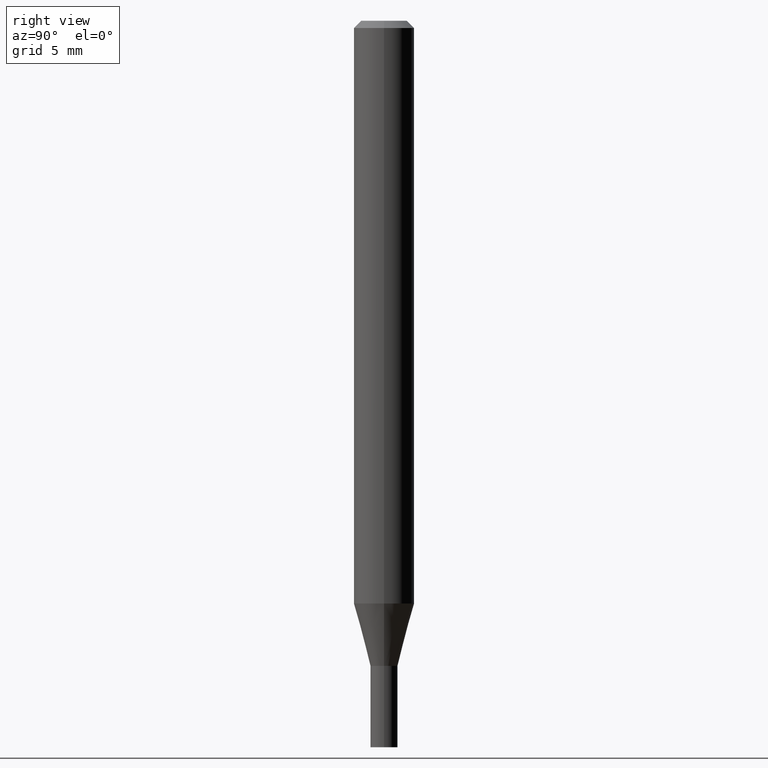
[diagram: clean part render]
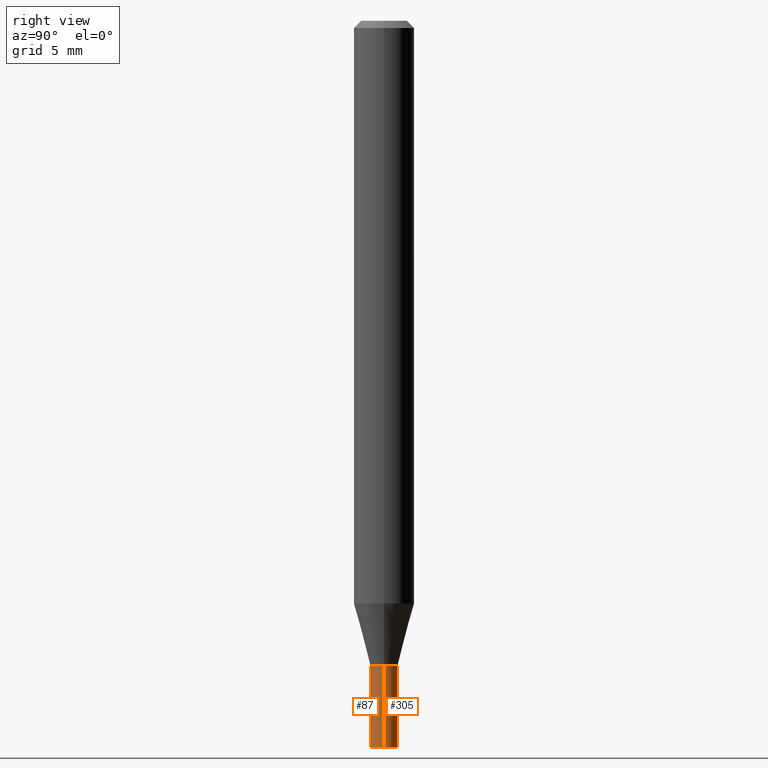
[diagram: same view with one multi-face feature highlighted, each face labeled with its STEP entity id]
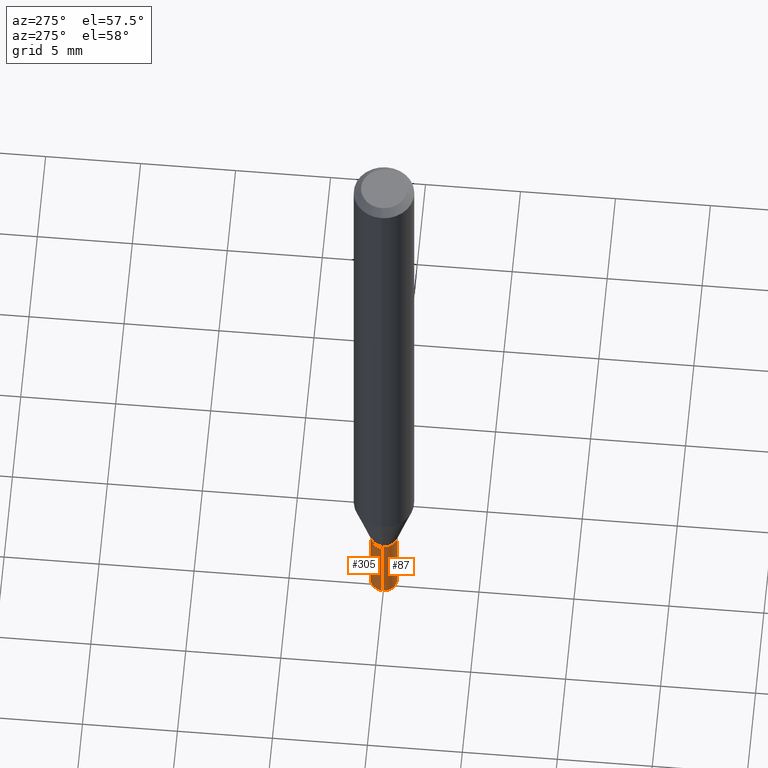
[diagram: same view with one multi-face feature highlighted, each face labeled with its STEP entity id]
A machine part, right view. The highlighted faces form ONE feature: a constant-radius fillet chain: 2 tangent blend faces with common blend radius 0.7112 mm. The faces share edges in the B-rep.
A second angle (auxiliary view) of the same feature is appended — it is thin or edge-on in the first view.
Their STEP definitions:
[1] entity #305 (Cylinder):
#5 = VERTEX_POINT ( 'NONE', #84 ) ;
#21 = VERTEX_POINT ( 'NONE', #48 ) ;
#22 = CARTESIAN_POINT ( 'NONE',  ( 0.02800000000000000405, -4.846176098314285600E-15, -1.332000000000000073 ) ) ;
#37 = CYLINDRICAL_SURFACE ( 'NONE', #445, 0.02800000000000000405 ) ;
#45 = ORIENTED_EDGE ( 'NONE', *, *, #257, .T. ) ;
#47 = ORIENTED_EDGE ( 'NONE', *, *, #99, .F. ) ;
#48 = CARTESIAN_POINT ( 'NONE',  ( 0.02800000000000000405, -5.432744963239933676E-15, -1.500000000000000222 ) ) ;
#61 = DIRECTION ( 'NONE',  ( 1.000000000000000000, -6.982962677686262766E-15, 0.000000000000000000 ) ) ;
#77 = EDGE_LOOP ( 'NONE', ( #45, #232, #221, #47 ) ) ;
#84 = CARTESIAN_POINT ( 'NONE',  ( -0.02800000000000000405, -4.744985609789067093E-15, -1.500000000000000222 ) ) ;
#99 = EDGE_CURVE ( 'NONE', #21, #206, #447, .T. ) ;
#123 = AXIS2_PLACEMENT_3D ( 'NONE', #198, #415, #301 ) ;
#130 = EDGE_CURVE ( 'NONE', #206, #426, #256, .T. ) ;
#166 = CARTESIAN_POINT ( 'NONE',  ( -0.02800000000000000405, 1.989519660128280808E-16, -1.377301825271373721E-30 ) ) ;
#189 = DIRECTION ( 'NONE',  ( 1.000000000000000000, -6.982962677686266711E-15, 4.876176775795935232E-29 ) ) ;
#198 = CARTESIAN_POINT ( 'NONE',  ( 3.257364449838602072E-29, -4.650653143339070101E-15, -1.332000000000000073 ) ) ;
#206 = VERTEX_POINT ( 'NONE', #22 ) ;
#221 = ORIENTED_EDGE ( 'NONE', *, *, #130, .F. ) ;
#232 = ORIENTED_EDGE ( 'NONE', *, *, #337, .T. ) ;
#256 = CIRCLE ( 'NONE', #123, 0.02800000000000000405 ) ;
#257 = EDGE_CURVE ( 'NONE', #21, #5, #439, .T. ) ;
#265 = CARTESIAN_POINT ( 'NONE',  ( 0.02800000000000000405, -1.955229549752154995E-16, 1.365329497222862141E-30 ) ) ;
#279 = AXIS2_PLACEMENT_3D ( 'NONE', #368, #455, #61 ) ;
#282 = CARTESIAN_POINT ( 'NONE',  ( 0.000000000000000000, 0.000000000000000000, 0.000000000000000000 ) ) ;
#301 = DIRECTION ( 'NONE',  ( 1.000000000000000000, -6.982962677686262766E-15, 0.000000000000000000 ) ) ;
#305 = ADVANCED_FACE ( 'NONE', ( #390 ), #37, .T. ) ;
#316 = VECTOR ( 'NONE', #407, 39.37007874015748143 ) ;
#331 = LINE ( 'NONE', #166, #361 ) ;
#337 = EDGE_CURVE ( 'NONE', #5, #426, #331, .T. ) ;
#353 = CARTESIAN_POINT ( 'NONE',  ( -0.02800000000000000405, -4.744985609789067093E-15, -1.332000000000000073 ) ) ;
#361 = VECTOR ( 'NONE', #451, 39.37007874015748143 ) ;
#368 = CARTESIAN_POINT ( 'NONE',  ( 3.668203209277704895E-29, -5.237222008264718177E-15, -1.500000000000000222 ) ) ;
#390 = FACE_OUTER_BOUND ( 'NONE', #77, .T. ) ;
#407 = DIRECTION ( 'NONE',  ( -2.445468806185136877E-29, 3.491481338843145188E-15, 1.000000000000000000 ) ) ;
#415 = DIRECTION ( 'NONE',  ( -2.445468806185136597E-29, 3.491481338843145583E-15, 1.000000000000000000 ) ) ;
#426 = VERTEX_POINT ( 'NONE', #353 ) ;
#439 = CIRCLE ( 'NONE', #279, 0.02800000000000000405 ) ;
#445 = AXIS2_PLACEMENT_3D ( 'NONE', #282, #456, #189 ) ;
#447 = LINE ( 'NONE', #265, #316 ) ;
#451 = DIRECTION ( 'NONE',  ( -2.445468806185136877E-29, 3.491481338843145188E-15, 1.000000000000000000 ) ) ;
#455 = DIRECTION ( 'NONE',  ( -2.445468806185136597E-29, 3.491481338843145583E-15, 1.000000000000000000 ) ) ;
#456 = DIRECTION ( 'NONE',  ( -2.445468806185136597E-29, 3.491481338843145583E-15, 1.000000000000000000 ) ) ;
[2] entity #87 (Cylinder):
#2 = CIRCLE ( 'NONE', #263, 0.02800000000000000405 ) ;
#5 = VERTEX_POINT ( 'NONE', #84 ) ;
#21 = VERTEX_POINT ( 'NONE', #48 ) ;
#22 = CARTESIAN_POINT ( 'NONE',  ( 0.02800000000000000405, -4.846176098314285600E-15, -1.332000000000000073 ) ) ;
#27 = EDGE_CURVE ( 'NONE', #426, #206, #411, .T. ) ;
#31 = CYLINDRICAL_SURFACE ( 'NONE', #71, 0.02800000000000000405 ) ;
#48 = CARTESIAN_POINT ( 'NONE',  ( 0.02800000000000000405, -5.432744963239933676E-15, -1.500000000000000222 ) ) ;
#55 = EDGE_CURVE ( 'NONE', #5, #21, #2, .T. ) ;
#71 = AXIS2_PLACEMENT_3D ( 'NONE', #142, #424, #339 ) ;
#74 = CARTESIAN_POINT ( 'NONE',  ( 3.668203209277704895E-29, -5.237222008264718177E-15, -1.500000000000000222 ) ) ;
#84 = CARTESIAN_POINT ( 'NONE',  ( -0.02800000000000000405, -4.744985609789067093E-15, -1.500000000000000222 ) ) ;
#87 = ADVANCED_FACE ( 'NONE', ( #465 ), #31, .T. ) ;
#99 = EDGE_CURVE ( 'NONE', #21, #206, #447, .T. ) ;
#105 = ORIENTED_EDGE ( 'NONE', *, *, #55, .T. ) ;
#142 = CARTESIAN_POINT ( 'NONE',  ( 0.000000000000000000, 0.000000000000000000, 0.000000000000000000 ) ) ;
#161 = AXIS2_PLACEMENT_3D ( 'NONE', #323, #278, #345 ) ;
#166 = CARTESIAN_POINT ( 'NONE',  ( -0.02800000000000000405, 1.989519660128280808E-16, -1.377301825271373721E-30 ) ) ;
#206 = VERTEX_POINT ( 'NONE', #22 ) ;
#244 = DIRECTION ( 'NONE',  ( -2.445468806185136597E-29, 3.491481338843145583E-15, 1.000000000000000000 ) ) ;
#259 = ORIENTED_EDGE ( 'NONE', *, *, #337, .F. ) ;
#263 = AXIS2_PLACEMENT_3D ( 'NONE', #74, #244, #311 ) ;
#265 = CARTESIAN_POINT ( 'NONE',  ( 0.02800000000000000405, -1.955229549752154995E-16, 1.365329497222862141E-30 ) ) ;
#278 = DIRECTION ( 'NONE',  ( -2.445468806185136597E-29, 3.491481338843145583E-15, 1.000000000000000000 ) ) ;
#298 = ORIENTED_EDGE ( 'NONE', *, *, #27, .F. ) ;
#308 = ORIENTED_EDGE ( 'NONE', *, *, #99, .T. ) ;
#311 = DIRECTION ( 'NONE',  ( 1.000000000000000000, -6.982962677686262766E-15, 0.000000000000000000 ) ) ;
#316 = VECTOR ( 'NONE', #407, 39.37007874015748143 ) ;
#323 = CARTESIAN_POINT ( 'NONE',  ( 3.257364449838602072E-29, -4.650653143339070101E-15, -1.332000000000000073 ) ) ;
#331 = LINE ( 'NONE', #166, #361 ) ;
#337 = EDGE_CURVE ( 'NONE', #5, #426, #331, .T. ) ;
#339 = DIRECTION ( 'NONE',  ( 1.000000000000000000, -6.982962677686266711E-15, 4.876176775795935232E-29 ) ) ;
#345 = DIRECTION ( 'NONE',  ( 1.000000000000000000, -6.982962677686262766E-15, 0.000000000000000000 ) ) ;
#353 = CARTESIAN_POINT ( 'NONE',  ( -0.02800000000000000405, -4.744985609789067093E-15, -1.332000000000000073 ) ) ;
#361 = VECTOR ( 'NONE', #451, 39.37007874015748143 ) ;
#407 = DIRECTION ( 'NONE',  ( -2.445468806185136877E-29, 3.491481338843145188E-15, 1.000000000000000000 ) ) ;
#411 = CIRCLE ( 'NONE', #161, 0.02800000000000000405 ) ;
#424 = DIRECTION ( 'NONE',  ( -2.445468806185136597E-29, 3.491481338843145583E-15, 1.000000000000000000 ) ) ;
#426 = VERTEX_POINT ( 'NONE', #353 ) ;
#444 = EDGE_LOOP ( 'NONE', ( #259, #105, #308, #298 ) ) ;
#447 = LINE ( 'NONE', #265, #316 ) ;
#451 = DIRECTION ( 'NONE',  ( -2.445468806185136877E-29, 3.491481338843145188E-15, 1.000000000000000000 ) ) ;
#465 = FACE_OUTER_BOUND ( 'NONE', #444, .T. ) ;